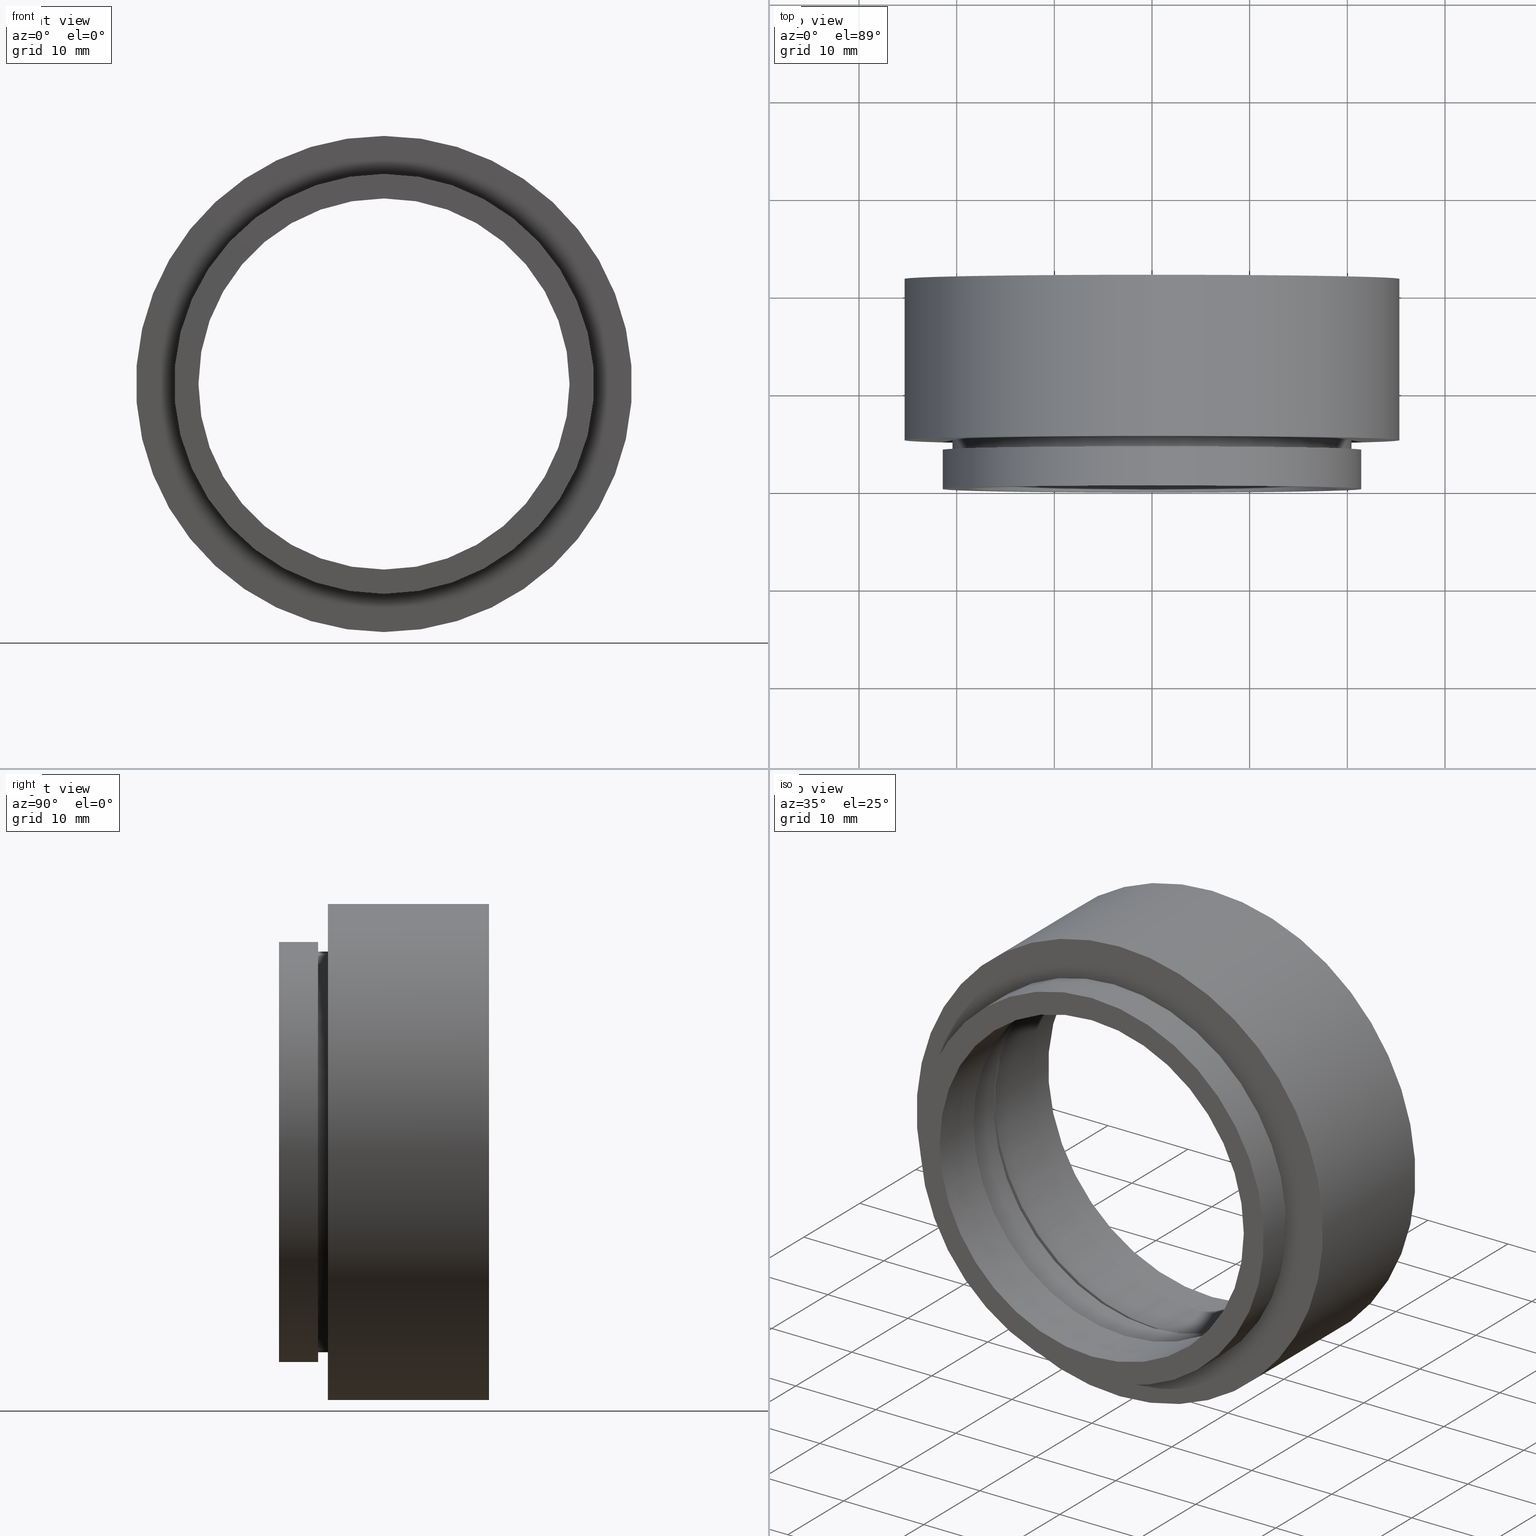
[diagram: canonical four-view strip — front | top / right | iso, engineering-drawing reading convention]
A machine part, canonical four-view strip (front | top / right | iso — engineering-drawing reading convention). The complete STEP part file that produces these views, byte-faithful:
ISO-10303-21;
HEADER;
FILE_DESCRIPTION (( 'STEP AP214' ),
    '1' );
FILE_NAME ('500010.STEP',
    '2019-08-29T07:20:05',
    ( 'user' ),
    ( '΢���й�' ),
    'SwSTEP 2.0',
    'SolidWorks 2016',
    '' );
FILE_SCHEMA (( 'AUTOMOTIVE_DESIGN' ));
ENDSEC;

DATA;
#1 = EDGE_CURVE ( 'NONE', #7, #657, #207, .T. ) ;
#2 = CARTESIAN_POINT ( 'NONE',  ( 0.0000000000000000000, 21.50000000000000000, 0.0000000000000000000 ) ) ;
#3 =( NAMED_UNIT ( * ) SI_UNIT ( $, .STERADIAN. ) SOLID_ANGLE_UNIT ( ) );
#4 = EDGE_CURVE ( 'NONE', #565, #37, #587, .T. ) ;
#5 = PRESENTATION_STYLE_ASSIGNMENT (( #312 ) ) ;
#6 = CARTESIAN_POINT ( 'NONE',  ( 19.00000000000000000, -3.061616997868383600E-016, 0.0000000000000000000 ) ) ;
#7 = VERTEX_POINT ( 'NONE', #486 ) ;
#8 = ORIENTED_EDGE ( 'NONE', *, *, #347, .F. ) ;
#9 = CARTESIAN_POINT ( 'NONE',  ( 2.510525938252074500E-015, 12.00000000000000000, 20.50000000000000000 ) ) ;
#10 = CLOSED_SHELL ( 'NONE', ( #241, #21, #361, #12, #562, #243, #193, #446, #518, #340, #546, #199, #380, #466, #181, #392, #455, #140, #179, #592, #185 ) ) ;
#11 = VECTOR ( 'NONE', #233, 1000.000000000000000 ) ;
#12 = ADVANCED_FACE ( 'NONE', ( #213 ), #196, .T. ) ;
#13 = DIRECTION ( 'NONE',  ( -0.0000000000000000000, -1.000000000000000000, -0.0000000000000000000 ) ) ;
#14 =( GEOMETRIC_REPRESENTATION_CONTEXT ( 3 ) GLOBAL_UNCERTAINTY_ASSIGNED_CONTEXT ( ( #242 ) ) GLOBAL_UNIT_ASSIGNED_CONTEXT ( ( #422, #492, #276 ) ) REPRESENTATION_CONTEXT ( 'NONE', 'WORKASPACE' ) );
#15 = CARTESIAN_POINT ( 'NONE',  ( 0.0000000000000000000, 0.0000000000000000000, -21.10000000000000100 ) ) ;
#16 = AXIS2_PLACEMENT_3D ( 'NONE', #653, #438, #287 ) ;
#17 = DIRECTION ( 'NONE',  ( -0.0000000000000000000, -1.000000000000000000, -0.0000000000000000000 ) ) ;
#18 = ORIENTED_EDGE ( 'NONE', *, *, #551, .F. ) ;
#19 = ORIENTED_EDGE ( 'NONE', *, *, #401, .T. ) ;
#20 = VERTEX_POINT ( 'NONE', #310 ) ;
#21 = ADVANCED_FACE ( 'NONE', ( #478 ), #559, .F. ) ;
#22 = DIRECTION ( 'NONE',  ( 0.0000000000000000000, 0.0000000000000000000, -1.000000000000000000 ) ) ;
#23 = EDGE_CURVE ( 'NONE', #577, #20, #619, .T. ) ;
#24 = DIRECTION ( 'NONE',  ( 0.0000000000000000000, 0.0000000000000000000, -1.000000000000000000 ) ) ;
#25 = PRODUCT_DEFINITION_SHAPE ( 'NONE', 'NONE',  #494 ) ;
#26 = CARTESIAN_POINT ( 'NONE',  ( 0.0000000000000000000, 3.999999999999999100, 0.0000000000000000000 ) ) ;
#27 = ORIENTED_EDGE ( 'NONE', *, *, #474, .T. ) ;
#28 = VECTOR ( 'NONE', #461, 1000.000000000000000 ) ;
#29 = EDGE_LOOP ( 'NONE', ( #8, #247 ) ) ;
#30 = SURFACE_SIDE_STYLE ('',( #335 ) ) ;
#31 = LINE ( 'NONE', #432, #28 ) ;
#32 = CARTESIAN_POINT ( 'NONE',  ( 0.0000000000000000000, 5.000000000000000000, 0.0000000000000000000 ) ) ;
#33 =( GEOMETRIC_REPRESENTATION_CONTEXT ( 3 ) GLOBAL_UNCERTAINTY_ASSIGNED_CONTEXT ( ( #39 ) ) GLOBAL_UNIT_ASSIGNED_CONTEXT ( ( #154, #356, #342 ) ) REPRESENTATION_CONTEXT ( 'NONE', 'WORKASPACE' ) );
#34 = CARTESIAN_POINT ( 'NONE',  ( 0.0000000000000000000, 0.0000000000000000000, 0.0000000000000000000 ) ) ;
#35 = DIRECTION ( 'NONE',  ( 0.0000000000000000000, -0.0000000000000000000, 1.000000000000000000 ) ) ;
#36 = AXIS2_PLACEMENT_3D ( 'NONE', #564, #548, #71 ) ;
#37 = VERTEX_POINT ( 'NONE', #405 ) ;
#38 = VERTEX_POINT ( 'NONE', #362 ) ;
#39 = UNCERTAINTY_MEASURE_WITH_UNIT (LENGTH_MEASURE( 1.000000000000000100E-005 ), #154, 'distance_accuracy_value', 'NONE');
#40 = PRESENTATION_LAYER_ASSIGNMENT (  '', '', ( #490 ) ) ;
#41 = ORIENTED_EDGE ( 'NONE', *, *, #232, .T. ) ;
#42 = CYLINDRICAL_SURFACE ( 'NONE', #510, 19.99999999999999600 ) ;
#43 = DIRECTION ( 'NONE',  ( -0.0000000000000000000, -1.000000000000000000, -0.0000000000000000000 ) ) ;
#44 = DIRECTION ( 'NONE',  ( 0.0000000000000000000, 0.0000000000000000000, -1.000000000000000000 ) ) ;
#45 = SURFACE_STYLE_USAGE ( .BOTH. , #336 ) ;
#46 = CIRCLE ( 'NONE', #434, 19.00000000000000000 ) ;
#47 = ORIENTED_EDGE ( 'NONE', *, *, #363, .T. ) ;
#48 = FACE_OUTER_BOUND ( 'NONE', #202, .T. ) ;
#49 = FILL_AREA_STYLE_COLOUR ( '', #459 ) ;
#50 = SURFACE_SIDE_STYLE ('',( #465 ) ) ;
#51 = CARTESIAN_POINT ( 'NONE',  ( 21.10000000000000100, 11.00000000000000000, 0.0000000000000000000 ) ) ;
#52 = AXIS2_PLACEMENT_3D ( 'NONE', #178, #180, #579 ) ;
#53 = DIRECTION ( 'NONE',  ( 0.0000000000000000000, 0.0000000000000000000, -1.000000000000000000 ) ) ;
#54 = CARTESIAN_POINT ( 'NONE',  ( 0.0000000000000000000, 6.000000000000000000, 0.0000000000000000000 ) ) ;
#55 = EDGE_LOOP ( 'NONE', ( #288, #364 ) ) ;
#56 = PRESENTATION_STYLE_ASSIGNMENT (( #582 ) ) ;
#57 = CYLINDRICAL_SURFACE ( 'NONE', #574, 20.50000000000000000 ) ;
#58 = DIRECTION ( 'NONE',  ( 0.0000000000000000000, 0.0000000000000000000, -1.000000000000000000 ) ) ;
#59 = MECHANICAL_DESIGN_GEOMETRIC_PRESENTATION_REPRESENTATION (  '', ( #128 ), #625 ) ;
#60 = EDGE_CURVE ( 'NONE', #38, #106, #215, .T. ) ;
#61 = CIRCLE ( 'NONE', #580, 19.00000000000000000 ) ;
#62 = ORIENTED_EDGE ( 'NONE', *, *, #286, .T. ) ;
#63 = DIRECTION ( 'NONE',  ( -0.0000000000000000000, -1.000000000000000000, -0.0000000000000000000 ) ) ;
#64 = ORIENTED_EDGE ( 'NONE', *, *, #632, .T. ) ;
#65 = LINE ( 'NONE', #15, #11 ) ;
#66 = AXIS2_PLACEMENT_3D ( 'NONE', #91, #495, #433 ) ;
#67 = CARTESIAN_POINT ( 'NONE',  ( 0.0000000000000000000, 0.0000000000000000000, 0.0000000000000000000 ) ) ;
#68 = DIRECTION ( 'NONE',  ( 0.0000000000000000000, -1.000000000000000000, -0.0000000000000000000 ) ) ;
#69 = CARTESIAN_POINT ( 'NONE',  ( 0.0000000000000000000, 3.999999999999999100, 0.0000000000000000000 ) ) ;
#70 = AXIS2_PLACEMENT_3D ( 'NONE', #367, #162, #571 ) ;
#71 = DIRECTION ( 'NONE',  ( 0.0000000000000000000, 0.0000000000000000000, -1.000000000000000000 ) ) ;
#72 = CIRCLE ( 'NONE', #538, 20.50000000000000000 ) ;
#73 = DIRECTION ( 'NONE',  ( -0.0000000000000000000, -1.000000000000000000, -0.0000000000000000000 ) ) ;
#74 = VERTEX_POINT ( 'NONE', #412 ) ;
#75 = ORIENTED_EDGE ( 'NONE', *, *, #221, .T. ) ;
#76 = CIRCLE ( 'NONE', #530, 25.39999999999999900 ) ;
#77 = ORIENTED_EDGE ( 'NONE', *, *, #366, .T. ) ;
#78 = CARTESIAN_POINT ( 'NONE',  ( 0.0000000000000000000, 11.00000000000000200, 0.0000000000000000000 ) ) ;
#79 = AXIS2_PLACEMENT_3D ( 'NONE', #69, #599, #514 ) ;
#80 = CARTESIAN_POINT ( 'NONE',  ( 0.0000000000000000000, 21.50000000000000000, 0.0000000000000000000 ) ) ;
#81 = CARTESIAN_POINT ( 'NONE',  ( 2.632990618166809200E-015, 0.0000000000000000000, 21.50000000000000000 ) ) ;
#82 = MANIFOLD_SOLID_BREP ( '��ת1', #10 ) ;
#83 = EDGE_CURVE ( 'NONE', #390, #38, #460, .T. ) ;
#84 = CARTESIAN_POINT ( 'NONE',  ( 2.449293598294706100E-015, 11.00000000000000000, 19.99999999999999600 ) ) ;
#85 = PLANE ( 'NONE',  #656 ) ;
#86 = ORIENTED_EDGE ( 'NONE', *, *, #232, .F. ) ;
#87 = ORIENTED_EDGE ( 'NONE', *, *, #105, .T. ) ;
#88 =( NAMED_UNIT ( * ) PLANE_ANGLE_UNIT ( ) SI_UNIT ( $, .RADIAN. ) );
#89 = CIRCLE ( 'NONE', #668, 21.50000000000000000 ) ;
#90 = DIRECTION ( 'NONE',  ( 0.0000000000000000000, 0.0000000000000000000, -1.000000000000000000 ) ) ;
#91 = CARTESIAN_POINT ( 'NONE',  ( 0.0000000000000000000, 3.999999999999999100, 0.0000000000000000000 ) ) ;
#92 = FILL_AREA_STYLE_COLOUR ( '', #384 ) ;
#93 = AXIS2_PLACEMENT_3D ( 'NONE', #34, #423, #344 ) ;
#94 = FACE_OUTER_BOUND ( 'NONE', #265, .T. ) ;
#95 = DIRECTION ( 'NONE',  ( -0.0000000000000000000, -1.000000000000000000, -0.0000000000000000000 ) ) ;
#96 = ORIENTED_EDGE ( 'NONE', *, *, #375, .T. ) ;
#97 = VECTOR ( 'NONE', #17, 1000.000000000000000 ) ;
#98 = VERTEX_POINT ( 'NONE', #531 ) ;
#99 = LINE ( 'NONE', #382, #97 ) ;
#100 = EDGE_CURVE ( 'NONE', #250, #307, #274, .T. ) ;
#101 = CARTESIAN_POINT ( 'NONE',  ( 2.510525938252074500E-015, 21.50000000000000000, 20.50000000000000000 ) ) ;
#102 = DIRECTION ( 'NONE',  ( -0.0000000000000000000, -1.000000000000000000, -0.0000000000000000000 ) ) ;
#103 = FILL_AREA_STYLE ('',( #49 ) ) ;
#104 = MECHANICAL_DESIGN_GEOMETRIC_PRESENTATION_REPRESENTATION (  '', ( #517 ), #33 ) ;
#105 = EDGE_CURVE ( 'NONE', #390, #74, #428, .T. ) ;
#106 = VERTEX_POINT ( 'NONE', #519 ) ;
#107 = ORIENTED_EDGE ( 'NONE', *, *, #576, .F. ) ;
#108 = FACE_BOUND ( 'NONE', #165, .T. ) ;
#109 = EDGE_LOOP ( 'NONE', ( #398, #96, #77, #157 ) ) ;
#110 = AXIS2_PLACEMENT_3D ( 'NONE', #439, #339, #295 ) ;
#111 = FACE_OUTER_BOUND ( 'NONE', #588, .T. ) ;
#112 = AXIS2_PLACEMENT_3D ( 'NONE', #441, #95, #628 ) ;
#113 = EDGE_LOOP ( 'NONE', ( #407, #87, #47, #184 ) ) ;
#114 = CARTESIAN_POINT ( 'NONE',  ( 0.0000000000000000000, 0.0000000000000000000, 0.0000000000000000000 ) ) ;
#115 = FACE_OUTER_BOUND ( 'NONE', #315, .T. ) ;
#116 = VECTOR ( 'NONE', #331, 1000.000000000000000 ) ;
#117 =( NAMED_UNIT ( * ) PLANE_ANGLE_UNIT ( ) SI_UNIT ( $, .RADIAN. ) );
#118 = DIRECTION ( 'NONE',  ( 0.0000000000000000000, -0.0000000000000000000, 1.000000000000000000 ) ) ;
#119 = CARTESIAN_POINT ( 'NONE',  ( 21.50000000000000000, 3.999999999999999100, 0.0000000000000000000 ) ) ;
#120 = AXIS2_PLACEMENT_3D ( 'NONE', #560, #298, #141 ) ;
#121 = CARTESIAN_POINT ( 'NONE',  ( 0.0000000000000000000, 0.0000000000000000000, -19.00000000000000000 ) ) ;
#122 = MECHANICAL_DESIGN_GEOMETRIC_PRESENTATION_REPRESENTATION (  '', ( #304 ), #248 ) ;
#123 = AXIS2_PLACEMENT_3D ( 'NONE', #381, #133, #190 ) ;
#124 = CYLINDRICAL_SURFACE ( 'NONE', #325, 25.39999999999999900 ) ;
#125 = ORIENTED_EDGE ( 'NONE', *, *, #354, .T. ) ;
#126 = CIRCLE ( 'NONE', #453, 20.00000000000000000 ) ;
#127 = ORIENTED_EDGE ( 'NONE', *, *, #431, .F. ) ;
#128 = STYLED_ITEM ( 'NONE', ( #258 ), #392 ) ;
#129 = DIRECTION ( 'NONE',  ( 0.0000000000000000000, 0.0000000000000000000, -1.000000000000000000 ) ) ;
#130 = FILL_AREA_STYLE ('',( #285 ) ) ;
#131 = LINE ( 'NONE', #584, #116 ) ;
#132 = VECTOR ( 'NONE', #269, 1000.000000000000000 ) ;
#133 = DIRECTION ( 'NONE',  ( -0.0000000000000000000, -1.000000000000000000, -0.0000000000000000000 ) ) ;
#134 = ORIENTED_EDGE ( 'NONE', *, *, #318, .T. ) ;
#135 = FACE_BOUND ( 'NONE', #29, .T. ) ;
#136 =( LENGTH_UNIT ( ) NAMED_UNIT ( * ) SI_UNIT ( .MILLI., .METRE. ) );
#137 = MECHANICAL_DESIGN_GEOMETRIC_PRESENTATION_REPRESENTATION (  '', ( #631 ), #617 ) ;
#138 = CYLINDRICAL_SURFACE ( 'NONE', #169, 19.00000000000000000 ) ;
#139 = DIRECTION ( 'NONE',  ( 0.0000000000000000000, 0.0000000000000000000, -1.000000000000000000 ) ) ;
#140 = ADVANCED_FACE ( 'NONE', ( #289 ), #544, .F. ) ;
#141 = DIRECTION ( 'NONE',  ( 0.0000000000000000000, 0.0000000000000000000, -1.000000000000000000 ) ) ;
#142 = DIRECTION ( 'NONE',  ( 0.0000000000000000000, 0.0000000000000000000, -1.000000000000000000 ) ) ;
#143 = AXIS2_PLACEMENT_3D ( 'NONE', #435, #187, #292 ) ;
#144 = DIRECTION ( 'NONE',  ( -0.0000000000000000000, -1.000000000000000000, -0.0000000000000000000 ) ) ;
#145 = ORIENTED_EDGE ( 'NONE', *, *, #341, .F. ) ;
#146 = ORIENTED_EDGE ( 'NONE', *, *, #291, .T. ) ;
#147 = FACE_BOUND ( 'NONE', #504, .T. ) ;
#148 = FACE_OUTER_BOUND ( 'NONE', #612, .T. ) ;
#149 = AXIS2_PLACEMENT_3D ( 'NONE', #240, #328, #44 ) ;
#150 = EDGE_CURVE ( 'NONE', #655, #586, #666, .T. ) ;
#151 = CARTESIAN_POINT ( 'NONE',  ( 2.584004746200915400E-015, 12.00000000000000000, 21.10000000000000100 ) ) ;
#152 =( NAMED_UNIT ( * ) SI_UNIT ( $, .STERADIAN. ) SOLID_ANGLE_UNIT ( ) );
#153 = AXIS2_PLACEMENT_3D ( 'NONE', #67, #595, #305 ) ;
#154 =( LENGTH_UNIT ( ) NAMED_UNIT ( * ) SI_UNIT ( .MILLI., .METRE. ) );
#155 = PRESENTATION_LAYER_ASSIGNMENT (  '', '', ( #304 ) ) ;
#156 = COLOUR_RGB ( '',1.000000000000000000, 1.000000000000000000, 1.000000000000000000 ) ;
#157 = ORIENTED_EDGE ( 'NONE', *, *, #221, .F. ) ;
#158 = ORIENTED_EDGE ( 'NONE', *, *, #332, .T. ) ;
#159 = CIRCLE ( 'NONE', #639, 21.50000000000000000 ) ;
#160 = CIRCLE ( 'NONE', #149, 25.39999999999999900 ) ;
#161 = AXIS2_PLACEMENT_3D ( 'NONE', #220, #452, #234 ) ;
#162 = DIRECTION ( 'NONE',  ( -0.0000000000000000000, -1.000000000000000000, -0.0000000000000000000 ) ) ;
#163 = FILL_AREA_STYLE ('',( #607 ) ) ;
#164 = EDGE_CURVE ( 'NONE', #480, #320, #570, .T. ) ;
#165 = EDGE_LOOP ( 'NONE', ( #125, #266 ) ) ;
#166 = ORIENTED_EDGE ( 'NONE', *, *, #375, .F. ) ;
#167 = ORIENTED_EDGE ( 'NONE', *, *, #164, .T. ) ;
#168 = CYLINDRICAL_SURFACE ( 'NONE', #153, 20.50000000000000000 ) ;
#169 = AXIS2_PLACEMENT_3D ( 'NONE', #263, #537, #317 ) ;
#170 = DIRECTION ( 'NONE',  ( -0.0000000000000000000, -1.000000000000000000, -0.0000000000000000000 ) ) ;
#171 = VECTOR ( 'NONE', #594, 1000.000000000000000 ) ;
#172 = CARTESIAN_POINT ( 'NONE',  ( 2.510525938252074500E-015, 3.999999999999999100, 20.50000000000000000 ) ) ;
#173 = AXIS2_PLACEMENT_3D ( 'NONE', #2, #506, #660 ) ;
#174 = PRODUCT ( '500010', '500010', '', ( #338 ) ) ;
#175 = EDGE_LOOP ( 'NONE', ( #489, #237, #346, #648 ) ) ;
#176 = AXIS2_PLACEMENT_3D ( 'NONE', #572, #596, #427 ) ;
#177 = ORIENTED_EDGE ( 'NONE', *, *, #597, .F. ) ;
#178 = CARTESIAN_POINT ( 'NONE',  ( 0.0000000000000000000, 11.00000000000000000, 0.0000000000000000000 ) ) ;
#179 = ADVANCED_FACE ( 'NONE', ( #633, #321 ), #360, .T. ) ;
#180 = DIRECTION ( 'NONE',  ( -0.0000000000000000000, -1.000000000000000000, -0.0000000000000000000 ) ) ;
#181 = ADVANCED_FACE ( 'NONE', ( #553, #468 ), #555, .T. ) ;
#182 = DIRECTION ( 'NONE',  ( 0.0000000000000000000, -1.000000000000000000, -0.0000000000000000000 ) ) ;
#183 = UNCERTAINTY_MEASURE_WITH_UNIT (LENGTH_MEASURE( 1.000000000000000100E-005 ), #475, 'distance_accuracy_value', 'NONE');
#184 = ORIENTED_EDGE ( 'NONE', *, *, #60, .F. ) ;
#185 = ADVANCED_FACE ( 'NONE', ( #566, #515 ), #206, .T. ) ;
#186 = COLOUR_RGB ( '',1.000000000000000000, 1.000000000000000000, 1.000000000000000000 ) ;
#187 = DIRECTION ( 'NONE',  ( -0.0000000000000000000, -1.000000000000000000, -0.0000000000000000000 ) ) ;
#188 = DIRECTION ( 'NONE',  ( -0.0000000000000000000, -1.000000000000000000, -0.0000000000000000000 ) ) ;
#189 = DIRECTION ( 'NONE',  ( -0.0000000000000000000, -1.000000000000000000, -0.0000000000000000000 ) ) ;
#190 = DIRECTION ( 'NONE',  ( 0.0000000000000000000, 0.0000000000000000000, -1.000000000000000000 ) ) ;
#191 = DIRECTION ( 'NONE',  ( 0.0000000000000000000, 0.0000000000000000000, -1.000000000000000000 ) ) ;
#192 = CARTESIAN_POINT ( 'NONE',  ( 0.0000000000000000000, 0.0000000000000000000, 0.0000000000000000000 ) ) ;
#193 = ADVANCED_FACE ( 'NONE', ( #386 ), #369, .F. ) ;
#194 = ORIENTED_EDGE ( 'NONE', *, *, #23, .F. ) ;
#195 = ORIENTED_EDGE ( 'NONE', *, *, #401, .F. ) ;
#196 = CYLINDRICAL_SURFACE ( 'NONE', #93, 25.39999999999999900 ) ;
#197 =( NAMED_UNIT ( * ) SI_UNIT ( $, .STERADIAN. ) SOLID_ANGLE_UNIT ( ) );
#198 = DIRECTION ( 'NONE',  ( -0.0000000000000000000, -1.000000000000000000, -0.0000000000000000000 ) ) ;
#199 = ADVANCED_FACE ( 'NONE', ( #451 ), #293, .T. ) ;
#200 = PRESENTATION_LAYER_ASSIGNMENT (  '', '', ( #631 ) ) ;
#201 = DIRECTION ( 'NONE',  ( -0.0000000000000000000, -1.000000000000000000, -0.0000000000000000000 ) ) ;
#202 = EDGE_LOOP ( 'NONE', ( #613, #509, #62, #27 ) ) ;
#203 = ORIENTED_EDGE ( 'NONE', *, *, #286, .F. ) ;
#204 = DIRECTION ( 'NONE',  ( -0.0000000000000000000, -1.000000000000000000, -0.0000000000000000000 ) ) ;
#205 = DIRECTION ( 'NONE',  ( -0.0000000000000000000, -1.000000000000000000, -0.0000000000000000000 ) ) ;
#206 = PLANE ( 'NONE',  #591 ) ;
#207 = CIRCLE ( 'NONE', #547, 20.50000000000000000 ) ;
#208 = EDGE_LOOP ( 'NONE', ( #134, #672 ) ) ;
#209 = FACE_BOUND ( 'NONE', #469, .T. ) ;
#210 = AXIS2_PLACEMENT_3D ( 'NONE', #119, #419, #638 ) ;
#211 = CARTESIAN_POINT ( 'NONE',  ( 20.00000000000000000, 6.000000000000000000, 0.0000000000000000000 ) ) ;
#212 = FACE_OUTER_BOUND ( 'NONE', #55, .T. ) ;
#213 = FACE_OUTER_BOUND ( 'NONE', #343, .T. ) ;
#214 = DIRECTION ( 'NONE',  ( 0.0000000000000000000, -1.000000000000000000, -0.0000000000000000000 ) ) ;
#215 = CIRCLE ( 'NONE', #16, 25.39999999999999900 ) ;
#216 = DIRECTION ( 'NONE',  ( 0.0000000000000000000, 0.0000000000000000000, 1.000000000000000000 ) ) ;
#217 = CARTESIAN_POINT ( 'NONE',  ( 20.50000000000000000, 4.999999999999999100, 0.0000000000000000000 ) ) ;
#218 = FACE_OUTER_BOUND ( 'NONE', #113, .T. ) ;
#219 = ORIENTED_EDGE ( 'NONE', *, *, #150, .F. ) ;
#220 = CARTESIAN_POINT ( 'NONE',  ( 0.0000000000000000000, 12.00000000000000000, 0.0000000000000000000 ) ) ;
#221 = EDGE_CURVE ( 'NONE', #98, #402, #521, .T. ) ;
#222 = CARTESIAN_POINT ( 'NONE',  ( 0.0000000000000000000, 11.00000000000000200, 0.0000000000000000000 ) ) ;
#223 = CARTESIAN_POINT ( 'NONE',  ( 0.0000000000000000000, 0.0000000000000000000, -21.50000000000000000 ) ) ;
#224 = EDGE_CURVE ( 'NONE', #239, #259, #345, .T. ) ;
#225 = CARTESIAN_POINT ( 'NONE',  ( 0.0000000000000000000, 11.00000000000000200, -21.10000000000000100 ) ) ;
#226 = CIRCLE ( 'NONE', #661, 19.00000000000000000 ) ;
#227 = VERTEX_POINT ( 'NONE', #526 ) ;
#228 = ORIENTED_EDGE ( 'NONE', *, *, #105, .F. ) ;
#229 = SURFACE_STYLE_USAGE ( .BOTH. , #322 ) ;
#230 = ORIENTED_EDGE ( 'NONE', *, *, #533, .T. ) ;
#231 = CARTESIAN_POINT ( 'NONE',  ( 2.632990618166809200E-015, 3.999999999999999100, 21.50000000000000000 ) ) ;
#232 = EDGE_CURVE ( 'NONE', #370, #507, #583, .T. ) ;
#233 = DIRECTION ( 'NONE',  ( -0.0000000000000000000, -1.000000000000000000, -0.0000000000000000000 ) ) ;
#234 = DIRECTION ( 'NONE',  ( 0.0000000000000000000, 0.0000000000000000000, -1.000000000000000000 ) ) ;
#235 = VECTOR ( 'NONE', #189, 1000.000000000000000 ) ;
#236 = FILL_AREA_STYLE ('',( #623 ) ) ;
#237 = ORIENTED_EDGE ( 'NONE', *, *, #608, .T. ) ;
#238 = AXIS2_PLACEMENT_3D ( 'NONE', #54, #394, #129 ) ;
#239 = VERTEX_POINT ( 'NONE', #84 ) ;
#240 = CARTESIAN_POINT ( 'NONE',  ( 0.0000000000000000000, 21.50000000000000000, 0.0000000000000000000 ) ) ;
#241 = ADVANCED_FACE ( 'NONE', ( #350 ), #290, .F. ) ;
#242 = UNCERTAINTY_MEASURE_WITH_UNIT (LENGTH_MEASURE( 1.000000000000000100E-005 ), #422, 'distance_accuracy_value', 'NONE');
#243 = ADVANCED_FACE ( 'NONE', ( #477 ), #436, .T. ) ;
#244 = CARTESIAN_POINT ( 'NONE',  ( 0.0000000000000000000, 11.00000000000000000, -19.99999999999999600 ) ) ;
#245 = DIRECTION ( 'NONE',  ( 0.0000000000000000000, 0.0000000000000000000, -1.000000000000000000 ) ) ;
#246 = CIRCLE ( 'NONE', #120, 20.50000000000000000 ) ;
#247 = ORIENTED_EDGE ( 'NONE', *, *, #366, .F. ) ;
#248 =( GEOMETRIC_REPRESENTATION_CONTEXT ( 3 ) GLOBAL_UNCERTAINTY_ASSIGNED_CONTEXT ( ( #183 ) ) GLOBAL_UNIT_ASSIGNED_CONTEXT ( ( #475, #503, #549 ) ) REPRESENTATION_CONTEXT ( 'NONE', 'WORKASPACE' ) );
#249 = VECTOR ( 'NONE', #622, 1000.000000000000000 ) ;
#250 = VERTEX_POINT ( 'NONE', #81 ) ;
#251 = EDGE_CURVE ( 'NONE', #320, #480, #649, .T. ) ;
#252 = CARTESIAN_POINT ( 'NONE',  ( 0.0000000000000000000, 0.0000000000000000000, -19.99999999999999600 ) ) ;
#253 = EDGE_LOOP ( 'NONE', ( #107, #578, #373, #457 ) ) ;
#254 = SURFACE_STYLE_FILL_AREA ( #640 ) ;
#255 = ORIENTED_EDGE ( 'NONE', *, *, #605, .T. ) ;
#256 = LINE ( 'NONE', #252, #409 ) ;
#257 = DIRECTION ( 'NONE',  ( 0.0000000000000000000, 0.0000000000000000000, -1.000000000000000000 ) ) ;
#258 = PRESENTATION_STYLE_ASSIGNMENT (( #296 ) ) ;
#259 = VERTEX_POINT ( 'NONE', #244 ) ;
#260 = ORIENTED_EDGE ( 'NONE', *, *, #4, .T. ) ;
#261 = FACE_OUTER_BOUND ( 'NONE', #408, .T. ) ;
#262 = DIRECTION ( 'NONE',  ( 1.000000000000000000, 0.0000000000000000000, 0.0000000000000000000 ) ) ;
#263 = CARTESIAN_POINT ( 'NONE',  ( 0.0000000000000000000, 0.0000000000000000000, 0.0000000000000000000 ) ) ;
#264 = DIRECTION ( 'NONE',  ( -0.0000000000000000000, -1.000000000000000000, -0.0000000000000000000 ) ) ;
#265 = EDGE_LOOP ( 'NONE', ( #458, #508, #437, #488 ) ) ;
#266 = ORIENTED_EDGE ( 'NONE', *, *, #23, .T. ) ;
#267 = CIRCLE ( 'NONE', #358, 21.50000000000000000 ) ;
#268 = AXIS2_PLACEMENT_3D ( 'NONE', #6, #182, #620 ) ;
#269 = DIRECTION ( 'NONE',  ( -0.0000000000000000000, -1.000000000000000000, -0.0000000000000000000 ) ) ;
#270 = SHAPE_DEFINITION_REPRESENTATION ( #25, #500 ) ;
#271 = EDGE_CURVE ( 'NONE', #586, #37, #400, .T. ) ;
#272 = CARTESIAN_POINT ( 'NONE',  ( 3.110602869834276900E-015, 0.0000000000000000000, 25.39999999999999900 ) ) ;
#273 = ORIENTED_EDGE ( 'NONE', *, *, #83, .T. ) ;
#274 = CIRCLE ( 'NONE', #143, 21.50000000000000000 ) ;
#275 = PRODUCT_DEFINITION_CONTEXT ( 'detailed design', #353, 'design' ) ;
#276 =( NAMED_UNIT ( * ) SI_UNIT ( $, .STERADIAN. ) SOLID_ANGLE_UNIT ( ) );
#277 = UNCERTAINTY_MEASURE_WITH_UNIT (LENGTH_MEASURE( 1.000000000000000100E-005 ), #136, 'distance_accuracy_value', 'NONE');
#278 = CIRCLE ( 'NONE', #238, 20.00000000000000000 ) ;
#279 = EDGE_LOOP ( 'NONE', ( #166, #177, #75, #280 ) ) ;
#280 = ORIENTED_EDGE ( 'NONE', *, *, #347, .T. ) ;
#281 = DIRECTION ( 'NONE',  ( 0.0000000000000000000, 1.000000000000000000, 0.0000000000000000000 ) ) ;
#282 = FACE_OUTER_BOUND ( 'NONE', #279, .T. ) ;
#283 = ORIENTED_EDGE ( 'NONE', *, *, #406, .T. ) ;
#284 = CYLINDRICAL_SURFACE ( 'NONE', #444, 20.50000000000000000 ) ;
#285 = FILL_AREA_STYLE_COLOUR ( '', #186 ) ;
#286 = EDGE_CURVE ( 'NONE', #259, #448, #256, .T. ) ;
#287 = DIRECTION ( 'NONE',  ( 0.0000000000000000000, 0.0000000000000000000, -1.000000000000000000 ) ) ;
#288 = ORIENTED_EDGE ( 'NONE', *, *, #551, .T. ) ;
#289 = FACE_OUTER_BOUND ( 'NONE', #450, .T. ) ;
#290 = CYLINDRICAL_SURFACE ( 'NONE', #176, 19.99999999999999600 ) ;
#291 = EDGE_CURVE ( 'NONE', #507, #370, #294, .T. ) ;
#292 = DIRECTION ( 'NONE',  ( 0.0000000000000000000, 0.0000000000000000000, -1.000000000000000000 ) ) ;
#293 = CYLINDRICAL_SURFACE ( 'NONE', #581, 20.50000000000000000 ) ;
#294 = CIRCLE ( 'NONE', #316, 21.10000000000000100 ) ;
#295 = DIRECTION ( 'NONE',  ( 0.0000000000000000000, 0.0000000000000000000, -1.000000000000000000 ) ) ;
#296 = SURFACE_STYLE_USAGE ( .BOTH. , #368 ) ;
#297 = COLOUR_RGB ( '',1.000000000000000000, 1.000000000000000000, 1.000000000000000000 ) ;
#298 = DIRECTION ( 'NONE',  ( -0.0000000000000000000, -1.000000000000000000, -0.0000000000000000000 ) ) ;
#299 = EDGE_CURVE ( 'NONE', #657, #577, #420, .T. ) ;
#300 = CARTESIAN_POINT ( 'NONE',  ( 0.0000000000000000000, 5.999999999999999100, 0.0000000000000000000 ) ) ;
#301 =( NAMED_UNIT ( * ) PLANE_ANGLE_UNIT ( ) SI_UNIT ( $, .RADIAN. ) );
#302 = CARTESIAN_POINT ( 'NONE',  ( 2.326828918379971000E-015, -6.123233995736767300E-016, 19.00000000000000000 ) ) ;
#303 = APPLICATION_PROTOCOL_DEFINITION ( 'draft international standard', 'automotive_design', 1998, #454 ) ;
#304 = STYLED_ITEM ( 'NONE', ( #421 ), #361 ) ;
#305 = DIRECTION ( 'NONE',  ( 0.0000000000000000000, 0.0000000000000000000, -1.000000000000000000 ) ) ;
#306 = EDGE_LOOP ( 'NONE', ( #417, #255, #41, #598 ) ) ;
#307 = VERTEX_POINT ( 'NONE', #636 ) ;
#308 = ORIENTED_EDGE ( 'NONE', *, *, #605, .F. ) ;
#309 = SURFACE_STYLE_FILL_AREA ( #130 ) ;
#310 = CARTESIAN_POINT ( 'NONE',  ( 0.0000000000000000000, 3.999999999999999100, -20.50000000000000000 ) ) ;
#311 = CARTESIAN_POINT ( 'NONE',  ( 0.0000000000000000000, 4.999999999999999100, 0.0000000000000000000 ) ) ;
#312 = SURFACE_STYLE_USAGE ( .BOTH. , #50 ) ;
#313 =( GEOMETRIC_REPRESENTATION_CONTEXT ( 3 ) GLOBAL_UNCERTAINTY_ASSIGNED_CONTEXT ( ( #440 ) ) GLOBAL_UNIT_ASSIGNED_CONTEXT ( ( #505, #483, #645 ) ) REPRESENTATION_CONTEXT ( 'NONE', 'WORKASPACE' ) );
#314 = CARTESIAN_POINT ( 'NONE',  ( 0.0000000000000000000, 6.000000000000000000, -20.00000000000000000 ) ) ;
#315 = EDGE_LOOP ( 'NONE', ( #399, #447 ) ) ;
#316 = AXIS2_PLACEMENT_3D ( 'NONE', #222, #198, #58 ) ;
#317 = DIRECTION ( 'NONE',  ( 0.0000000000000000000, 0.0000000000000000000, -1.000000000000000000 ) ) ;
#318 = EDGE_CURVE ( 'NONE', #259, #239, #359, .T. ) ;
#319 = CARTESIAN_POINT ( 'NONE',  ( 0.0000000000000000000, -6.123233995736767300E-016, -19.00000000000000000 ) ) ;
#320 = VERTEX_POINT ( 'NONE', #151 ) ;
#321 = FACE_OUTER_BOUND ( 'NONE', #534, .T. ) ;
#322 = SURFACE_SIDE_STYLE ('',( #659 ) ) ;
#323 = LINE ( 'NONE', #541, #249 ) ;
#324 = ORIENTED_EDGE ( 'NONE', *, *, #476, .T. ) ;
#325 = AXIS2_PLACEMENT_3D ( 'NONE', #511, #501, #569 ) ;
#326 = DIRECTION ( 'NONE',  ( -0.0000000000000000000, -1.000000000000000000, -0.0000000000000000000 ) ) ;
#327 = EDGE_CURVE ( 'NONE', #603, #307, #449, .T. ) ;
#328 = DIRECTION ( 'NONE',  ( -0.0000000000000000000, -1.000000000000000000, -0.0000000000000000000 ) ) ;
#329 = CARTESIAN_POINT ( 'NONE',  ( 20.50000000000000000, 12.00000000000000000, 0.0000000000000000000 ) ) ;
#330 = CARTESIAN_POINT ( 'NONE',  ( 0.0000000000000000000, 21.50000000000000000, -20.50000000000000000 ) ) ;
#331 = DIRECTION ( 'NONE',  ( -0.0000000000000000000, -1.000000000000000000, -0.0000000000000000000 ) ) ;
#332 = EDGE_CURVE ( 'NONE', #37, #586, #491, .T. ) ;
#333 = CARTESIAN_POINT ( 'NONE',  ( 0.0000000000000000000, 0.0000000000000000000, 0.0000000000000000000 ) ) ;
#334 = EDGE_LOOP ( 'NONE', ( #498, #324, #19, #203 ) ) ;
#335 = SURFACE_STYLE_FILL_AREA ( #103 ) ;
#336 = SURFACE_SIDE_STYLE ('',( #254 ) ) ;
#337 = AXIS2_PLACEMENT_3D ( 'NONE', #51, #540, #496 ) ;
#338 = PRODUCT_CONTEXT ( 'NONE', #454, 'mechanical' ) ;
#339 = DIRECTION ( 'NONE',  ( -0.0000000000000000000, -1.000000000000000000, -0.0000000000000000000 ) ) ;
#340 = ADVANCED_FACE ( 'NONE', ( #493 ), #545, .T. ) ;
#341 = EDGE_CURVE ( 'NONE', #565, #655, #667, .T. ) ;
#342 =( NAMED_UNIT ( * ) SI_UNIT ( $, .STERADIAN. ) SOLID_ANGLE_UNIT ( ) );
#343 = EDGE_LOOP ( 'NONE', ( #391, #273, #18, #618 ) ) ;
#344 = DIRECTION ( 'NONE',  ( 0.0000000000000000000, 0.0000000000000000000, -1.000000000000000000 ) ) ;
#345 = CIRCLE ( 'NONE', #52, 19.99999999999999600 ) ;
#346 = ORIENTED_EDGE ( 'NONE', *, *, #327, .T. ) ;
#347 = EDGE_CURVE ( 'NONE', #402, #426, #226, .T. ) ;
#348 = CARTESIAN_POINT ( 'NONE',  ( 0.0000000000000000000, 12.00000000000000000, 0.0000000000000000000 ) ) ;
#349 = DIRECTION ( 'NONE',  ( 0.0000000000000000000, 0.0000000000000000000, -1.000000000000000000 ) ) ;
#350 = FACE_OUTER_BOUND ( 'NONE', #334, .T. ) ;
#351 = CARTESIAN_POINT ( 'NONE',  ( 2.326828918379971000E-015, 5.999999999999999100, 19.00000000000000000 ) ) ;
#352 = ORIENTED_EDGE ( 'NONE', *, *, #524, .F. ) ;
#353 = APPLICATION_CONTEXT ( 'automotive_design' ) ;
#354 = EDGE_CURVE ( 'NONE', #20, #577, #664, .T. ) ;
#355 = DIRECTION ( 'NONE',  ( 0.0000000000000000000, 0.0000000000000000000, -1.000000000000000000 ) ) ;
#356 =( NAMED_UNIT ( * ) PLANE_ANGLE_UNIT ( ) SI_UNIT ( $, .RADIAN. ) );
#357 = VECTOR ( 'NONE', #204, 1000.000000000000000 ) ;
#358 = AXIS2_PLACEMENT_3D ( 'NONE', #26, #626, #53 ) ;
#359 = CIRCLE ( 'NONE', #123, 19.99999999999999600 ) ;
#360 = PLANE ( 'NONE',  #337 ) ;
#361 = ADVANCED_FACE ( 'NONE', ( #651 ), #284, .F. ) ;
#362 = CARTESIAN_POINT ( 'NONE',  ( 3.110602869834276900E-015, 5.000000000000000000, 25.39999999999999900 ) ) ;
#363 = EDGE_CURVE ( 'NONE', #74, #106, #637, .T. ) ;
#364 = ORIENTED_EDGE ( 'NONE', *, *, #60, .T. ) ;
#365 = SURFACE_STYLE_USAGE ( .BOTH. , #629 ) ;
#366 = EDGE_CURVE ( 'NONE', #426, #402, #374, .T. ) ;
#367 = CARTESIAN_POINT ( 'NONE',  ( 0.0000000000000000000, 0.0000000000000000000, 0.0000000000000000000 ) ) ;
#368 = SURFACE_SIDE_STYLE ('',( #309 ) ) ;
#369 = CYLINDRICAL_SURFACE ( 'NONE', #662, 19.00000000000000000 ) ;
#370 = VERTEX_POINT ( 'NONE', #397 ) ;
#371 = ORIENTED_EDGE ( 'NONE', *, *, #524, .T. ) ;
#372 = CARTESIAN_POINT ( 'NONE',  ( 0.0000000000000000000, 0.0000000000000000000, -20.50000000000000000 ) ) ;
#373 = ORIENTED_EDGE ( 'NONE', *, *, #271, .T. ) ;
#374 = CIRCLE ( 'NONE', #487, 19.00000000000000000 ) ;
#375 = EDGE_CURVE ( 'NONE', #647, #426, #323, .T. ) ;
#376 = DIRECTION ( 'NONE',  ( 0.0000000000000000000, 0.0000000000000000000, -1.000000000000000000 ) ) ;
#377 = EDGE_CURVE ( 'NONE', #657, #7, #246, .T. ) ;
#378 = STYLED_ITEM ( 'NONE', ( #411 ), #243 ) ;
#379 = PLANE ( 'NONE',  #644 ) ;
#380 = ADVANCED_FACE ( 'NONE', ( #212, #209 ), #85, .T. ) ;
#381 = CARTESIAN_POINT ( 'NONE',  ( 0.0000000000000000000, 11.00000000000000000, 0.0000000000000000000 ) ) ;
#382 = CARTESIAN_POINT ( 'NONE',  ( 2.632990618166809200E-015, 0.0000000000000000000, 21.50000000000000000 ) ) ;
#383 = UNCERTAINTY_MEASURE_WITH_UNIT (LENGTH_MEASURE( 1.000000000000000100E-005 ), #536, 'distance_accuracy_value', 'NONE');
#384 = COLOUR_RGB ( '',1.000000000000000000, 1.000000000000000000, 1.000000000000000000 ) ;
#385 = VERTEX_POINT ( 'NONE', #231 ) ;
#386 = FACE_OUTER_BOUND ( 'NONE', #109, .T. ) ;
#387 = PRESENTATION_LAYER_ASSIGNMENT (  '', '', ( #128 ) ) ;
#388 = CARTESIAN_POINT ( 'NONE',  ( 0.0000000000000000000, 3.999999999999999100, -21.50000000000000000 ) ) ;
#389 = ORIENTED_EDGE ( 'NONE', *, *, #271, .F. ) ;
#390 = VERTEX_POINT ( 'NONE', #589 ) ;
#391 = ORIENTED_EDGE ( 'NONE', *, *, #431, .T. ) ;
#392 = ADVANCED_FACE ( 'NONE', ( #261 ), #168, .F. ) ;
#393 = DIRECTION ( 'NONE',  ( -0.0000000000000000000, -1.000000000000000000, -0.0000000000000000000 ) ) ;
#394 = DIRECTION ( 'NONE',  ( -0.0000000000000000000, -1.000000000000000000, -0.0000000000000000000 ) ) ;
#395 = CARTESIAN_POINT ( 'NONE',  ( 0.0000000000000000000, 0.0000000000000000000, -25.39999999999999900 ) ) ;
#396 = CARTESIAN_POINT ( 'NONE',  ( 25.39999999999999900, 21.50000000000000000, 0.0000000000000000000 ) ) ;
#397 = CARTESIAN_POINT ( 'NONE',  ( 2.584004746200915400E-015, 11.00000000000000200, 21.10000000000000100 ) ) ;
#398 = ORIENTED_EDGE ( 'NONE', *, *, #627, .F. ) ;
#399 = ORIENTED_EDGE ( 'NONE', *, *, #406, .F. ) ;
#400 = CIRCLE ( 'NONE', #110, 20.50000000000000000 ) ;
#401 = EDGE_CURVE ( 'NONE', #227, #448, #278, .T. ) ;
#402 = VERTEX_POINT ( 'NONE', #319 ) ;
#403 = EDGE_LOOP ( 'NONE', ( #283, #230, #352, #535 ) ) ;
#404 = AXIS2_PLACEMENT_3D ( 'NONE', #78, #654, #600 ) ;
#405 = CARTESIAN_POINT ( 'NONE',  ( 0.0000000000000000000, 12.00000000000000000, -20.50000000000000000 ) ) ;
#406 = EDGE_CURVE ( 'NONE', #603, #385, #267, .T. ) ;
#407 = ORIENTED_EDGE ( 'NONE', *, *, #83, .F. ) ;
#408 = EDGE_LOOP ( 'NONE', ( #219, #145, #260, #158 ) ) ;
#409 = VECTOR ( 'NONE', #63, 1000.000000000000000 ) ;
#410 = CARTESIAN_POINT ( 'NONE',  ( 0.0000000000000000000, 5.999999999999999100, 0.0000000000000000000 ) ) ;
#411 = PRESENTATION_STYLE_ASSIGNMENT (( #45 ) ) ;
#412 = CARTESIAN_POINT ( 'NONE',  ( 0.0000000000000000000, 21.50000000000000000, -25.39999999999999900 ) ) ;
#413 =( GEOMETRIC_REPRESENTATION_CONTEXT ( 3 ) GLOBAL_UNCERTAINTY_ASSIGNED_CONTEXT ( ( #277 ) ) GLOBAL_UNIT_ASSIGNED_CONTEXT ( ( #136, #88, #3 ) ) REPRESENTATION_CONTEXT ( 'NONE', 'WORKASPACE' ) );
#414 = UNCERTAINTY_MEASURE_WITH_UNIT (LENGTH_MEASURE( 1.000000000000000100E-005 ), #621, 'distance_accuracy_value', 'NONE');
#415 = PRESENTATION_LAYER_ASSIGNMENT (  '', '', ( #517 ) ) ;
#416 = VECTOR ( 'NONE', #43, 1000.000000000000000 ) ;
#417 = ORIENTED_EDGE ( 'NONE', *, *, #251, .F. ) ;
#418 = EDGE_LOOP ( 'NONE', ( #635, #516, #634, #194 ) ) ;
#419 = DIRECTION ( 'NONE',  ( 0.0000000000000000000, 1.000000000000000000, 0.0000000000000000000 ) ) ;
#420 = LINE ( 'NONE', #532, #171 ) ;
#421 = PRESENTATION_STYLE_ASSIGNMENT (( #229 ) ) ;
#422 =( LENGTH_UNIT ( ) NAMED_UNIT ( * ) SI_UNIT ( .MILLI., .METRE. ) );
#423 = DIRECTION ( 'NONE',  ( -0.0000000000000000000, -1.000000000000000000, -0.0000000000000000000 ) ) ;
#424 = CARTESIAN_POINT ( 'NONE',  ( 0.0000000000000000000, -6.123233995736767300E-016, 0.0000000000000000000 ) ) ;
#425 = DIRECTION ( 'NONE',  ( -0.0000000000000000000, -1.000000000000000000, -0.0000000000000000000 ) ) ;
#426 = VERTEX_POINT ( 'NONE', #302 ) ;
#427 = DIRECTION ( 'NONE',  ( 0.0000000000000000000, 0.0000000000000000000, -1.000000000000000000 ) ) ;
#428 = CIRCLE ( 'NONE', #173, 25.39999999999999900 ) ;
#429 = EDGE_LOOP ( 'NONE', ( #665, #195 ) ) ;
#430 = CARTESIAN_POINT ( 'NONE',  ( 0.0000000000000000000, 0.0000000000000000000, -20.50000000000000000 ) ) ;
#431 = EDGE_CURVE ( 'NONE', #74, #390, #160, .T. ) ;
#432 = CARTESIAN_POINT ( 'NONE',  ( 2.584004746200915400E-015, 0.0000000000000000000, 21.10000000000000100 ) ) ;
#433 = DIRECTION ( 'NONE',  ( 0.0000000000000000000, 0.0000000000000000000, -1.000000000000000000 ) ) ;
#434 = AXIS2_PLACEMENT_3D ( 'NONE', #410, #425, #652 ) ;
#435 = CARTESIAN_POINT ( 'NONE',  ( 0.0000000000000000000, 0.0000000000000000000, 0.0000000000000000000 ) ) ;
#436 = CYLINDRICAL_SURFACE ( 'NONE', #593, 21.50000000000000000 ) ;
#437 = ORIENTED_EDGE ( 'NONE', *, *, #354, .F. ) ;
#438 = DIRECTION ( 'NONE',  ( -0.0000000000000000000, -1.000000000000000000, -0.0000000000000000000 ) ) ;
#439 = CARTESIAN_POINT ( 'NONE',  ( 0.0000000000000000000, 12.00000000000000000, 0.0000000000000000000 ) ) ;
#440 = UNCERTAINTY_MEASURE_WITH_UNIT (LENGTH_MEASURE( 1.000000000000000100E-005 ), #505, 'distance_accuracy_value', 'NONE');
#441 = CARTESIAN_POINT ( 'NONE',  ( 0.0000000000000000000, 12.00000000000000000, 0.0000000000000000000 ) ) ;
#442 = CARTESIAN_POINT ( 'NONE',  ( 0.0000000000000000000, 0.0000000000000000000, 0.0000000000000000000 ) ) ;
#443 = CARTESIAN_POINT ( 'NONE',  ( 0.0000000000000000000, 6.000000000000000000, 0.0000000000000000000 ) ) ;
#444 = AXIS2_PLACEMENT_3D ( 'NONE', #512, #264, #525 ) ;
#445 = CARTESIAN_POINT ( 'NONE',  ( 0.0000000000000000000, 0.0000000000000000000, 0.0000000000000000000 ) ) ;
#446 = ADVANCED_FACE ( 'NONE', ( #282 ), #138, .F. ) ;
#447 = ORIENTED_EDGE ( 'NONE', *, *, #608, .F. ) ;
#448 = VERTEX_POINT ( 'NONE', #314 ) ;
#449 = LINE ( 'NONE', #223, #235 ) ;
#450 = EDGE_LOOP ( 'NONE', ( #308, #470, #64, #146 ) ) ;
#451 = FACE_OUTER_BOUND ( 'NONE', #418, .T. ) ;
#452 = DIRECTION ( 'NONE',  ( -0.0000000000000000000, -1.000000000000000000, -0.0000000000000000000 ) ) ;
#453 = AXIS2_PLACEMENT_3D ( 'NONE', #443, #624, #142 ) ;
#454 = APPLICATION_CONTEXT ( 'automotive_design' ) ;
#455 = ADVANCED_FACE ( 'NONE', ( #148, #147 ), #379, .T. ) ;
#456 = DIRECTION ( 'NONE',  ( 0.0000000000000000000, 0.0000000000000000000, -1.000000000000000000 ) ) ;
#457 = ORIENTED_EDGE ( 'NONE', *, *, #4, .F. ) ;
#458 = ORIENTED_EDGE ( 'NONE', *, *, #1, .T. ) ;
#459 = COLOUR_RGB ( '',1.000000000000000000, 1.000000000000000000, 1.000000000000000000 ) ;
#460 = LINE ( 'NONE', #272, #550 ) ;
#461 = DIRECTION ( 'NONE',  ( -0.0000000000000000000, -1.000000000000000000, -0.0000000000000000000 ) ) ;
#462 = CARTESIAN_POINT ( 'NONE',  ( 2.510525938252074500E-015, 4.999999999999999100, 20.50000000000000000 ) ) ;
#463 = DIRECTION ( 'NONE',  ( 0.0000000000000000000, 0.0000000000000000000, -1.000000000000000000 ) ) ;
#464 = DIRECTION ( 'NONE',  ( -0.0000000000000000000, -1.000000000000000000, -0.0000000000000000000 ) ) ;
#465 = SURFACE_STYLE_FILL_AREA ( #523 ) ;
#466 = ADVANCED_FACE ( 'NONE', ( #218 ), #124, .T. ) ;
#467 = DIRECTION ( 'NONE',  ( -0.0000000000000000000, -1.000000000000000000, -0.0000000000000000000 ) ) ;
#468 = FACE_OUTER_BOUND ( 'NONE', #497, .T. ) ;
#469 = EDGE_LOOP ( 'NONE', ( #650, #674 ) ) ;
#470 = ORIENTED_EDGE ( 'NONE', *, *, #164, .F. ) ;
#471 = DIRECTION ( 'NONE',  ( 0.0000000000000000000, 1.000000000000000000, 0.0000000000000000000 ) ) ;
#472 = AXIS2_PLACEMENT_3D ( 'NONE', #333, #216, #262 ) ;
#473 = DIRECTION ( 'NONE',  ( -0.0000000000000000000, -1.000000000000000000, -0.0000000000000000000 ) ) ;
#474 = EDGE_CURVE ( 'NONE', #448, #227, #126, .T. ) ;
#475 =( LENGTH_UNIT ( ) NAMED_UNIT ( * ) SI_UNIT ( .MILLI., .METRE. ) );
#476 = EDGE_CURVE ( 'NONE', #239, #227, #131, .T. ) ;
#477 = FACE_OUTER_BOUND ( 'NONE', #403, .T. ) ;
#478 = FACE_OUTER_BOUND ( 'NONE', #306, .T. ) ;
#479 = DIRECTION ( 'NONE',  ( 0.0000000000000000000, 0.0000000000000000000, -1.000000000000000000 ) ) ;
#480 = VERTEX_POINT ( 'NONE', #485 ) ;
#481 = CARTESIAN_POINT ( 'NONE',  ( 0.0000000000000000000, 3.999999999999999100, 0.0000000000000000000 ) ) ;
#482 = CARTESIAN_POINT ( 'NONE',  ( 0.0000000000000000000, 21.50000000000000000, 0.0000000000000000000 ) ) ;
#483 =( NAMED_UNIT ( * ) PLANE_ANGLE_UNIT ( ) SI_UNIT ( $, .RADIAN. ) );
#484 = PRODUCT_DEFINITION_FORMATION_WITH_SPECIFIED_SOURCE ( '�κ�', '', #174, .NOT_KNOWN. ) ;
#485 = CARTESIAN_POINT ( 'NONE',  ( 0.0000000000000000000, 12.00000000000000000, -21.10000000000000100 ) ) ;
#486 = CARTESIAN_POINT ( 'NONE',  ( 0.0000000000000000000, 4.999999999999999100, -20.50000000000000000 ) ) ;
#487 = AXIS2_PLACEMENT_3D ( 'NONE', #539, #205, #139 ) ;
#488 = ORIENTED_EDGE ( 'NONE', *, *, #658, .F. ) ;
#489 = ORIENTED_EDGE ( 'NONE', *, *, #533, .F. ) ;
#490 = STYLED_ITEM ( 'NONE', ( #543 ), #82 ) ;
#491 = CIRCLE ( 'NONE', #568, 20.50000000000000000 ) ;
#492 =( NAMED_UNIT ( * ) PLANE_ANGLE_UNIT ( ) SI_UNIT ( $, .RADIAN. ) );
#493 = FACE_OUTER_BOUND ( 'NONE', #175, .T. ) ;
#494 = PRODUCT_DEFINITION ( 'δ֪', '', #484, #275 ) ;
#495 = DIRECTION ( 'NONE',  ( -0.0000000000000000000, -1.000000000000000000, -0.0000000000000000000 ) ) ;
#496 = DIRECTION ( 'NONE',  ( 0.0000000000000000000, -0.0000000000000000000, 1.000000000000000000 ) ) ;
#497 = EDGE_LOOP ( 'NONE', ( #127, #228 ) ) ;
#498 = ORIENTED_EDGE ( 'NONE', *, *, #224, .F. ) ;
#499 = VECTOR ( 'NONE', #188, 1000.000000000000000 ) ;
#500 = ADVANCED_BREP_SHAPE_REPRESENTATION ( '500010', ( #82, #472 ), #413 ) ;
#501 = DIRECTION ( 'NONE',  ( -0.0000000000000000000, -1.000000000000000000, -0.0000000000000000000 ) ) ;
#502 = DIRECTION ( 'NONE',  ( -0.0000000000000000000, -1.000000000000000000, -0.0000000000000000000 ) ) ;
#503 =( NAMED_UNIT ( * ) PLANE_ANGLE_UNIT ( ) SI_UNIT ( $, .RADIAN. ) );
#504 = EDGE_LOOP ( 'NONE', ( #520, #389 ) ) ;
#505 =( LENGTH_UNIT ( ) NAMED_UNIT ( * ) SI_UNIT ( .MILLI., .METRE. ) );
#506 = DIRECTION ( 'NONE',  ( -0.0000000000000000000, -1.000000000000000000, -0.0000000000000000000 ) ) ;
#507 = VERTEX_POINT ( 'NONE', #225 ) ;
#508 = ORIENTED_EDGE ( 'NONE', *, *, #299, .T. ) ;
#509 = ORIENTED_EDGE ( 'NONE', *, *, #318, .F. ) ;
#510 = AXIS2_PLACEMENT_3D ( 'NONE', #442, #170, #90 ) ;
#511 = CARTESIAN_POINT ( 'NONE',  ( 0.0000000000000000000, 0.0000000000000000000, 0.0000000000000000000 ) ) ;
#512 = CARTESIAN_POINT ( 'NONE',  ( 0.0000000000000000000, 0.0000000000000000000, 0.0000000000000000000 ) ) ;
#513 = DIRECTION ( 'NONE',  ( 0.0000000000000000000, 0.0000000000000000000, -1.000000000000000000 ) ) ;
#514 = DIRECTION ( 'NONE',  ( 0.0000000000000000000, 0.0000000000000000000, -1.000000000000000000 ) ) ;
#515 = FACE_OUTER_BOUND ( 'NONE', #429, .T. ) ;
#516 = ORIENTED_EDGE ( 'NONE', *, *, #377, .T. ) ;
#517 = STYLED_ITEM ( 'NONE', ( #56 ), #340 ) ;
#518 = ADVANCED_FACE ( 'NONE', ( #111, #135 ), #529, .T. ) ;
#519 = CARTESIAN_POINT ( 'NONE',  ( 0.0000000000000000000, 5.000000000000000000, -25.39999999999999900 ) ) ;
#520 = ORIENTED_EDGE ( 'NONE', *, *, #332, .F. ) ;
#521 = LINE ( 'NONE', #121, #499 ) ;
#522 = ORIENTED_EDGE ( 'NONE', *, *, #100, .T. ) ;
#523 = FILL_AREA_STYLE ('',( #557 ) ) ;
#524 = EDGE_CURVE ( 'NONE', #307, #250, #159, .T. ) ;
#525 = DIRECTION ( 'NONE',  ( 0.0000000000000000000, 0.0000000000000000000, -1.000000000000000000 ) ) ;
#526 = CARTESIAN_POINT ( 'NONE',  ( 2.449293598294706500E-015, 6.000000000000000000, 20.00000000000000000 ) ) ;
#527 = DIRECTION ( 'NONE',  ( -0.0000000000000000000, -1.000000000000000000, -0.0000000000000000000 ) ) ;
#528 = ORIENTED_EDGE ( 'NONE', *, *, #341, .T. ) ;
#529 = PLANE ( 'NONE',  #268 ) ;
#530 = AXIS2_PLACEMENT_3D ( 'NONE', #32, #552, #257 ) ;
#531 = CARTESIAN_POINT ( 'NONE',  ( 0.0000000000000000000, 5.999999999999999100, -19.00000000000000000 ) ) ;
#532 = CARTESIAN_POINT ( 'NONE',  ( 2.510525938252074500E-015, 0.0000000000000000000, 20.50000000000000000 ) ) ;
#533 = EDGE_CURVE ( 'NONE', #385, #250, #99, .T. ) ;
#534 = EDGE_LOOP ( 'NONE', ( #614, #86 ) ) ;
#535 = ORIENTED_EDGE ( 'NONE', *, *, #327, .F. ) ;
#536 =( LENGTH_UNIT ( ) NAMED_UNIT ( * ) SI_UNIT ( .MILLI., .METRE. ) );
#537 = DIRECTION ( 'NONE',  ( -0.0000000000000000000, -1.000000000000000000, -0.0000000000000000000 ) ) ;
#538 = AXIS2_PLACEMENT_3D ( 'NONE', #80, #464, #616 ) ;
#539 = CARTESIAN_POINT ( 'NONE',  ( 0.0000000000000000000, -6.123233995736767300E-016, 0.0000000000000000000 ) ) ;
#540 = DIRECTION ( 'NONE',  ( 0.0000000000000000000, 1.000000000000000000, 0.0000000000000000000 ) ) ;
#541 = CARTESIAN_POINT ( 'NONE',  ( 2.326828918379971000E-015, 0.0000000000000000000, 19.00000000000000000 ) ) ;
#542 = EDGE_LOOP ( 'NONE', ( #528, #554 ) ) ;
#543 = PRESENTATION_STYLE_ASSIGNMENT (( #365 ) ) ;
#544 = CYLINDRICAL_SURFACE ( 'NONE', #641, 21.10000000000000100 ) ;
#545 = CYLINDRICAL_SURFACE ( 'NONE', #70, 21.50000000000000000 ) ;
#546 = ADVANCED_FACE ( 'NONE', ( #108, #115 ), #671, .T. ) ;
#547 = AXIS2_PLACEMENT_3D ( 'NONE', #311, #393, #573 ) ;
#548 = DIRECTION ( 'NONE',  ( -0.0000000000000000000, -1.000000000000000000, -0.0000000000000000000 ) ) ;
#549 =( NAMED_UNIT ( * ) SI_UNIT ( $, .STERADIAN. ) SOLID_ANGLE_UNIT ( ) );
#550 = VECTOR ( 'NONE', #669, 1000.000000000000000 ) ;
#551 = EDGE_CURVE ( 'NONE', #106, #38, #76, .T. ) ;
#552 = DIRECTION ( 'NONE',  ( -0.0000000000000000000, -1.000000000000000000, -0.0000000000000000000 ) ) ;
#553 = FACE_BOUND ( 'NONE', #542, .T. ) ;
#554 = ORIENTED_EDGE ( 'NONE', *, *, #576, .T. ) ;
#555 = PLANE ( 'NONE',  #615 ) ;
#556 = APPLICATION_PROTOCOL_DEFINITION ( 'draft international standard', 'automotive_design', 1998, #353 ) ;
#557 = FILL_AREA_STYLE_COLOUR ( '', #297 ) ;
#558 = LINE ( 'NONE', #430, #416 ) ;
#559 = CYLINDRICAL_SURFACE ( 'NONE', #36, 21.10000000000000100 ) ;
#560 = CARTESIAN_POINT ( 'NONE',  ( 0.0000000000000000000, 4.999999999999999100, 0.0000000000000000000 ) ) ;
#561 = DIRECTION ( 'NONE',  ( -0.0000000000000000000, -1.000000000000000000, -0.0000000000000000000 ) ) ;
#562 = ADVANCED_FACE ( 'NONE', ( #94 ), #57, .T. ) ;
#563 = DIRECTION ( 'NONE',  ( 0.0000000000000000000, 0.0000000000000000000, -1.000000000000000000 ) ) ;
#564 = CARTESIAN_POINT ( 'NONE',  ( 0.0000000000000000000, 0.0000000000000000000, 0.0000000000000000000 ) ) ;
#565 = VERTEX_POINT ( 'NONE', #330 ) ;
#566 = FACE_BOUND ( 'NONE', #585, .T. ) ;
#567 = AXIS2_PLACEMENT_3D ( 'NONE', #482, #326, #563 ) ;
#568 = AXIS2_PLACEMENT_3D ( 'NONE', #348, #473, #479 ) ;
#569 = DIRECTION ( 'NONE',  ( 0.0000000000000000000, 0.0000000000000000000, -1.000000000000000000 ) ) ;
#570 = CIRCLE ( 'NONE', #161, 21.10000000000000100 ) ;
#571 = DIRECTION ( 'NONE',  ( 0.0000000000000000000, 0.0000000000000000000, -1.000000000000000000 ) ) ;
#572 = CARTESIAN_POINT ( 'NONE',  ( 0.0000000000000000000, 0.0000000000000000000, 0.0000000000000000000 ) ) ;
#573 = DIRECTION ( 'NONE',  ( 0.0000000000000000000, 0.0000000000000000000, -1.000000000000000000 ) ) ;
#574 = AXIS2_PLACEMENT_3D ( 'NONE', #192, #73, #245 ) ;
#575 = DIRECTION ( 'NONE',  ( -0.0000000000000000000, -1.000000000000000000, -0.0000000000000000000 ) ) ;
#576 = EDGE_CURVE ( 'NONE', #655, #565, #72, .T. ) ;
#577 = VERTEX_POINT ( 'NONE', #172 ) ;
#578 = ORIENTED_EDGE ( 'NONE', *, *, #150, .T. ) ;
#579 = DIRECTION ( 'NONE',  ( 0.0000000000000000000, 0.0000000000000000000, -1.000000000000000000 ) ) ;
#580 = AXIS2_PLACEMENT_3D ( 'NONE', #300, #102, #355 ) ;
#581 = AXIS2_PLACEMENT_3D ( 'NONE', #663, #502, #463 ) ;
#582 = SURFACE_STYLE_USAGE ( .BOTH. , #30 ) ;
#583 = CIRCLE ( 'NONE', #404, 21.10000000000000100 ) ;
#584 = CARTESIAN_POINT ( 'NONE',  ( 2.449293598294706100E-015, 0.0000000000000000000, 19.99999999999999600 ) ) ;
#585 = EDGE_LOOP ( 'NONE', ( #642, #604 ) ) ;
#586 = VERTEX_POINT ( 'NONE', #9 ) ;
#587 = LINE ( 'NONE', #372, #132 ) ;
#588 = EDGE_LOOP ( 'NONE', ( #371, #522 ) ) ;
#589 = CARTESIAN_POINT ( 'NONE',  ( 3.110602869834276900E-015, 21.50000000000000000, 25.39999999999999900 ) ) ;
#590 = CARTESIAN_POINT ( 'NONE',  ( 0.0000000000000000000, 0.0000000000000000000, 0.0000000000000000000 ) ) ;
#591 = AXIS2_PLACEMENT_3D ( 'NONE', #211, #281, #35 ) ;
#592 = ADVANCED_FACE ( 'NONE', ( #48 ), #42, .F. ) ;
#593 = AXIS2_PLACEMENT_3D ( 'NONE', #590, #13, #349 ) ;
#594 = DIRECTION ( 'NONE',  ( -0.0000000000000000000, -1.000000000000000000, -0.0000000000000000000 ) ) ;
#595 = DIRECTION ( 'NONE',  ( -0.0000000000000000000, -1.000000000000000000, -0.0000000000000000000 ) ) ;
#596 = DIRECTION ( 'NONE',  ( -0.0000000000000000000, -1.000000000000000000, -0.0000000000000000000 ) ) ;
#597 = EDGE_CURVE ( 'NONE', #98, #647, #46, .T. ) ;
#598 = ORIENTED_EDGE ( 'NONE', *, *, #632, .F. ) ;
#599 = DIRECTION ( 'NONE',  ( -0.0000000000000000000, -1.000000000000000000, -0.0000000000000000000 ) ) ;
#600 = DIRECTION ( 'NONE',  ( 0.0000000000000000000, 0.0000000000000000000, -1.000000000000000000 ) ) ;
#601 = PRODUCT_RELATED_PRODUCT_CATEGORY ( 'part', '', ( #174 ) ) ;
#602 = CARTESIAN_POINT ( 'NONE',  ( 2.510525938252074500E-015, 0.0000000000000000000, 20.50000000000000000 ) ) ;
#603 = VERTEX_POINT ( 'NONE', #388 ) ;
#604 = ORIENTED_EDGE ( 'NONE', *, *, #627, .T. ) ;
#605 = EDGE_CURVE ( 'NONE', #320, #370, #31, .T. ) ;
#606 = MECHANICAL_DESIGN_GEOMETRIC_PRESENTATION_REPRESENTATION (  '', ( #378 ), #313 ) ;
#607 = FILL_AREA_STYLE_COLOUR ( '', #611 ) ;
#608 = EDGE_CURVE ( 'NONE', #385, #603, #89, .T. ) ;
#609 = PRESENTATION_LAYER_ASSIGNMENT (  '', '', ( #378 ) ) ;
#610 = DIRECTION ( 'NONE',  ( 0.0000000000000000000, 0.0000000000000000000, -1.000000000000000000 ) ) ;
#611 = COLOUR_RGB ( '',1.000000000000000000, 1.000000000000000000, 1.000000000000000000 ) ;
#612 = EDGE_LOOP ( 'NONE', ( #167, #630 ) ) ;
#613 = ORIENTED_EDGE ( 'NONE', *, *, #476, .F. ) ;
#614 = ORIENTED_EDGE ( 'NONE', *, *, #291, .F. ) ;
#615 = AXIS2_PLACEMENT_3D ( 'NONE', #396, #471, #118 ) ;
#616 = DIRECTION ( 'NONE',  ( 0.0000000000000000000, 0.0000000000000000000, -1.000000000000000000 ) ) ;
#617 =( GEOMETRIC_REPRESENTATION_CONTEXT ( 3 ) GLOBAL_UNCERTAINTY_ASSIGNED_CONTEXT ( ( #414 ) ) GLOBAL_UNIT_ASSIGNED_CONTEXT ( ( #621, #301, #197 ) ) REPRESENTATION_CONTEXT ( 'NONE', 'WORKASPACE' ) );
#618 = ORIENTED_EDGE ( 'NONE', *, *, #363, .F. ) ;
#619 = CIRCLE ( 'NONE', #79, 20.50000000000000000 ) ;
#620 = DIRECTION ( 'NONE',  ( 0.0000000000000000000, 0.0000000000000000000, -1.000000000000000000 ) ) ;
#621 =( LENGTH_UNIT ( ) NAMED_UNIT ( * ) SI_UNIT ( .MILLI., .METRE. ) );
#622 = DIRECTION ( 'NONE',  ( -0.0000000000000000000, -1.000000000000000000, -0.0000000000000000000 ) ) ;
#623 = FILL_AREA_STYLE_COLOUR ( '', #156 ) ;
#624 = DIRECTION ( 'NONE',  ( -0.0000000000000000000, -1.000000000000000000, -0.0000000000000000000 ) ) ;
#625 =( GEOMETRIC_REPRESENTATION_CONTEXT ( 3 ) GLOBAL_UNCERTAINTY_ASSIGNED_CONTEXT ( ( #383 ) ) GLOBAL_UNIT_ASSIGNED_CONTEXT ( ( #536, #117, #152 ) ) REPRESENTATION_CONTEXT ( 'NONE', 'WORKASPACE' ) );
#626 = DIRECTION ( 'NONE',  ( -0.0000000000000000000, -1.000000000000000000, -0.0000000000000000000 ) ) ;
#627 = EDGE_CURVE ( 'NONE', #647, #98, #61, .T. ) ;
#628 = DIRECTION ( 'NONE',  ( 0.0000000000000000000, 0.0000000000000000000, -1.000000000000000000 ) ) ;
#629 = SURFACE_SIDE_STYLE ('',( #643 ) ) ;
#630 = ORIENTED_EDGE ( 'NONE', *, *, #251, .T. ) ;
#631 = STYLED_ITEM ( 'NONE', ( #5 ), #500 ) ;
#632 = EDGE_CURVE ( 'NONE', #480, #507, #65, .T. ) ;
#633 = FACE_BOUND ( 'NONE', #208, .T. ) ;
#634 = ORIENTED_EDGE ( 'NONE', *, *, #658, .T. ) ;
#635 = ORIENTED_EDGE ( 'NONE', *, *, #299, .F. ) ;
#636 = CARTESIAN_POINT ( 'NONE',  ( 0.0000000000000000000, 0.0000000000000000000, -21.50000000000000000 ) ) ;
#637 = LINE ( 'NONE', #395, #357 ) ;
#638 = DIRECTION ( 'NONE',  ( 0.0000000000000000000, -0.0000000000000000000, 1.000000000000000000 ) ) ;
#639 = AXIS2_PLACEMENT_3D ( 'NONE', #646, #467, #24 ) ;
#640 = FILL_AREA_STYLE ('',( #92 ) ) ;
#641 = AXIS2_PLACEMENT_3D ( 'NONE', #114, #527, #22 ) ;
#642 = ORIENTED_EDGE ( 'NONE', *, *, #597, .T. ) ;
#643 = SURFACE_STYLE_FILL_AREA ( #236 ) ;
#644 = AXIS2_PLACEMENT_3D ( 'NONE', #329, #214, #513 ) ;
#645 =( NAMED_UNIT ( * ) SI_UNIT ( $, .STERADIAN. ) SOLID_ANGLE_UNIT ( ) );
#646 = CARTESIAN_POINT ( 'NONE',  ( 0.0000000000000000000, 0.0000000000000000000, 0.0000000000000000000 ) ) ;
#647 = VERTEX_POINT ( 'NONE', #351 ) ;
#648 = ORIENTED_EDGE ( 'NONE', *, *, #100, .F. ) ;
#649 = CIRCLE ( 'NONE', #112, 21.10000000000000100 ) ;
#650 = ORIENTED_EDGE ( 'NONE', *, *, #1, .F. ) ;
#651 = FACE_OUTER_BOUND ( 'NONE', #253, .T. ) ;
#652 = DIRECTION ( 'NONE',  ( 0.0000000000000000000, 0.0000000000000000000, -1.000000000000000000 ) ) ;
#653 = CARTESIAN_POINT ( 'NONE',  ( 0.0000000000000000000, 5.000000000000000000, 0.0000000000000000000 ) ) ;
#654 = DIRECTION ( 'NONE',  ( -0.0000000000000000000, -1.000000000000000000, -0.0000000000000000000 ) ) ;
#655 = VERTEX_POINT ( 'NONE', #101 ) ;
#656 = AXIS2_PLACEMENT_3D ( 'NONE', #217, #68, #376 ) ;
#657 = VERTEX_POINT ( 'NONE', #462 ) ;
#658 = EDGE_CURVE ( 'NONE', #7, #20, #558, .T. ) ;
#659 = SURFACE_STYLE_FILL_AREA ( #163 ) ;
#660 = DIRECTION ( 'NONE',  ( 0.0000000000000000000, 0.0000000000000000000, -1.000000000000000000 ) ) ;
#661 = AXIS2_PLACEMENT_3D ( 'NONE', #424, #575, #191 ) ;
#662 = AXIS2_PLACEMENT_3D ( 'NONE', #445, #144, #610 ) ;
#663 = CARTESIAN_POINT ( 'NONE',  ( 0.0000000000000000000, 0.0000000000000000000, 0.0000000000000000000 ) ) ;
#664 = CIRCLE ( 'NONE', #66, 20.50000000000000000 ) ;
#665 = ORIENTED_EDGE ( 'NONE', *, *, #474, .F. ) ;
#666 = LINE ( 'NONE', #602, #673 ) ;
#667 = CIRCLE ( 'NONE', #567, 20.50000000000000000 ) ;
#668 = AXIS2_PLACEMENT_3D ( 'NONE', #481, #561, #456 ) ;
#669 = DIRECTION ( 'NONE',  ( -0.0000000000000000000, -1.000000000000000000, -0.0000000000000000000 ) ) ;
#670 = MECHANICAL_DESIGN_GEOMETRIC_PRESENTATION_REPRESENTATION (  '', ( #490 ), #14 ) ;
#671 = PLANE ( 'NONE',  #210 ) ;
#672 = ORIENTED_EDGE ( 'NONE', *, *, #224, .T. ) ;
#673 = VECTOR ( 'NONE', #201, 1000.000000000000000 ) ;
#674 = ORIENTED_EDGE ( 'NONE', *, *, #377, .F. ) ;
ENDSEC;
END-ISO-10303-21;
